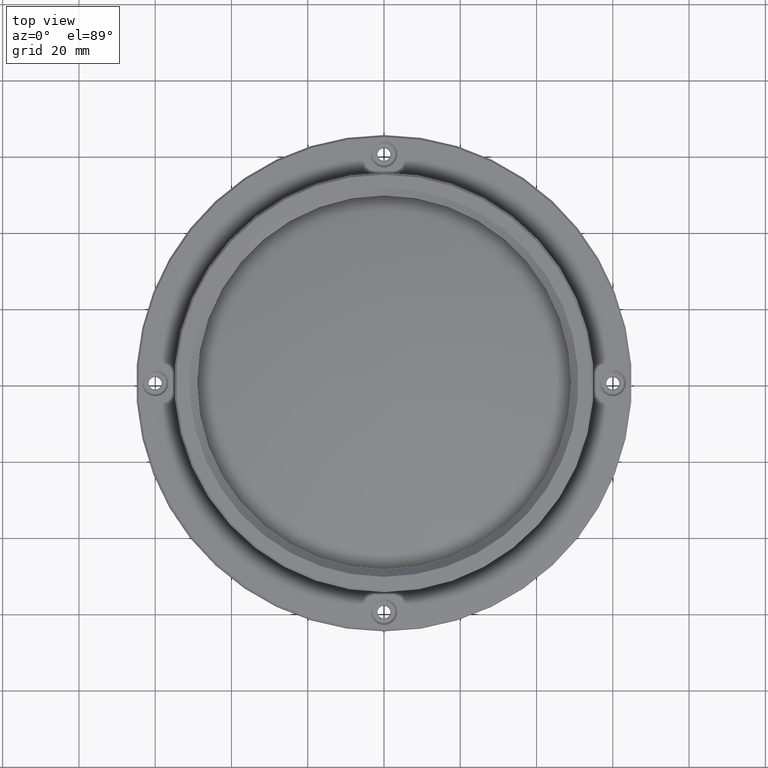
[diagram: clean part render]
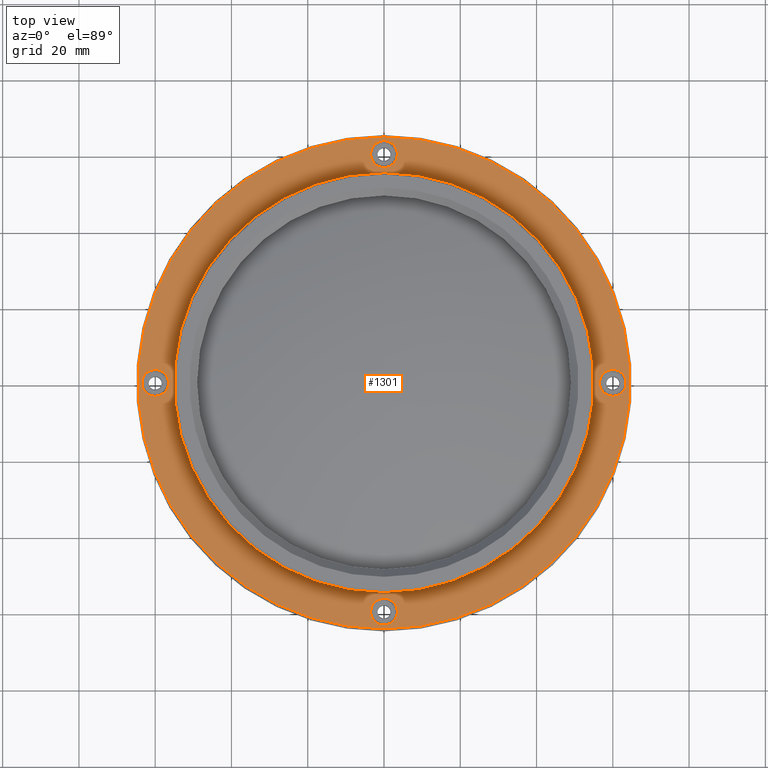
[diagram: same view with one face highlighted and labeled with its STEP entity id]
A machine part, top view. The second image highlights one B-rep face of the part: STEP entity #1301.
In plain terms, the highlighted planar face has unit normal (0, 0, -1).
Its self-contained STEP definition (entity closure, byte-faithful):
#14 = CARTESIAN_POINT ( 'NONE',  ( 3.500000000000000000, 60.00000000000000000, 64.49999937593000254 ) ) ;
#19 = CIRCLE ( 'NONE', #1603, 3.500000000000000000 ) ;
#42 = ORIENTED_EDGE ( 'NONE', *, *, #2005, .T. ) ;
#44 = DIRECTION ( 'NONE',  ( 0.000000000000000000, 0.000000000000000000, -1.000000000000000000 ) ) ;
#77 = ORIENTED_EDGE ( 'NONE', *, *, #2275, .F. ) ;
#125 = DIRECTION ( 'NONE',  ( 0.000000000000000000, 1.000000000000000000, 0.000000000000000000 ) ) ;
#154 = CARTESIAN_POINT ( 'NONE',  ( -60.00000000000000000, 3.500000000000000000, 64.49999937593000254 ) ) ;
#163 = ORIENTED_EDGE ( 'NONE', *, *, #633, .T. ) ;
#165 = EDGE_LOOP ( 'NONE', ( #284, #2220 ) ) ;
#169 = DIRECTION ( 'NONE',  ( 0.000000000000000000, 1.000000000000000000, 0.000000000000000000 ) ) ;
#187 = VERTEX_POINT ( 'NONE', #2142 ) ;
#206 = EDGE_CURVE ( 'NONE', #854, #1212, #19, .T. ) ;
#218 = AXIS2_PLACEMENT_3D ( 'NONE', #339, #2256, #1377 ) ;
#250 = AXIS2_PLACEMENT_3D ( 'NONE', #1020, #1731, #169 ) ;
#253 = CARTESIAN_POINT ( 'NONE',  ( 0.000000000000000000, 60.00000000000000000, 64.49999937593000254 ) ) ;
#284 = ORIENTED_EDGE ( 'NONE', *, *, #1676, .T. ) ;
#306 = CARTESIAN_POINT ( 'NONE',  ( 3.500000000000000000, -60.00000000000000000, 64.49999937593000254 ) ) ;
#333 = DIRECTION ( 'NONE',  ( -1.000000000000000000, 0.000000000000000000, 0.000000000000000000 ) ) ;
#339 = CARTESIAN_POINT ( 'NONE',  ( -60.00000000000000000, -1.110223024624999873E-14, 64.49999937593000254 ) ) ;
#349 = DIRECTION ( 'NONE',  ( 0.000000000000000000, 0.000000000000000000, -1.000000000000000000 ) ) ;
#356 = EDGE_CURVE ( 'NONE', #978, #187, #1621, .T. ) ;
#376 = ORIENTED_EDGE ( 'NONE', *, *, #2150, .F. ) ;
#384 = FACE_BOUND ( 'NONE', #1665, .T. ) ;
#401 = VERTEX_POINT ( 'NONE', #2123 ) ;
#417 = VERTEX_POINT ( 'NONE', #1557 ) ;
#425 = EDGE_LOOP ( 'NONE', ( #1018, #1206 ) ) ;
#439 = CIRCLE ( 'NONE', #250, 64.49999640843999771 ) ;
#442 = DIRECTION ( 'NONE',  ( 0.000000000000000000, 0.000000000000000000, -1.000000000000000000 ) ) ;
#443 = ORIENTED_EDGE ( 'NONE', *, *, #206, .T. ) ;
#450 = EDGE_CURVE ( 'NONE', #1956, #1233, #1324, .T. ) ;
#486 = CARTESIAN_POINT ( 'NONE',  ( 0.000000000000000000, 0.000000000000000000, 64.49999937593000254 ) ) ;
#495 = VERTEX_POINT ( 'NONE', #557 ) ;
#499 = CARTESIAN_POINT ( 'NONE',  ( 0.000000000000000000, -60.00000000000000000, 64.49999937593000254 ) ) ;
#508 = AXIS2_PLACEMENT_3D ( 'NONE', #486, #1375, #125 ) ;
#515 = CIRCLE ( 'NONE', #593, 3.500000000000000000 ) ;
#540 = FACE_BOUND ( 'NONE', #1913, .T. ) ;
#544 = CIRCLE ( 'NONE', #1619, 3.500000000000000000 ) ;
#551 = CIRCLE ( 'NONE', #844, 55.00000432955999941 ) ;
#553 = DIRECTION ( 'NONE',  ( 0.000000000000000000, 0.000000000000000000, 1.000000000000000000 ) ) ;
#557 = CARTESIAN_POINT ( 'NONE',  ( 0.000000000000000000, -55.00000432955999941, 64.49999937593000254 ) ) ;
#559 = VERTEX_POINT ( 'NONE', #14 ) ;
#566 = FACE_BOUND ( 'NONE', #688, .T. ) ;
#569 = AXIS2_PLACEMENT_3D ( 'NONE', #1884, #2202, #1893 ) ;
#593 = AXIS2_PLACEMENT_3D ( 'NONE', #690, #870, #333 ) ;
#600 = EDGE_CURVE ( 'NONE', #187, #978, #1398, .T. ) ;
#605 = DIRECTION ( 'NONE',  ( -1.000000000000000000, 0.000000000000000000, 0.000000000000000000 ) ) ;
#625 = AXIS2_PLACEMENT_3D ( 'NONE', #2139, #44, #1651 ) ;
#633 = EDGE_CURVE ( 'NONE', #559, #854, #1817, .T. ) ;
#671 = EDGE_CURVE ( 'NONE', #1212, #559, #1706, .T. ) ;
#688 = EDGE_LOOP ( 'NONE', ( #1814, #2269, #42 ) ) ;
#690 = CARTESIAN_POINT ( 'NONE',  ( 0.000000000000000000, -60.00000000000000000, 64.49999937593000254 ) ) ;
#753 = ORIENTED_EDGE ( 'NONE', *, *, #1856, .T. ) ;
#814 = AXIS2_PLACEMENT_3D ( 'NONE', #1838, #2034, #1474 ) ;
#844 = AXIS2_PLACEMENT_3D ( 'NONE', #1653, #553, #1997 ) ;
#854 = VERTEX_POINT ( 'NONE', #1528 ) ;
#862 = EDGE_CURVE ( 'NONE', #2137, #2124, #439, .T. ) ;
#870 = DIRECTION ( 'NONE',  ( 0.000000000000000000, 0.000000000000000000, -1.000000000000000000 ) ) ;
#896 = AXIS2_PLACEMENT_3D ( 'NONE', #906, #2012, #1440 ) ;
#897 = CARTESIAN_POINT ( 'NONE',  ( -60.00000000000000000, -1.110223024624999873E-14, 64.49999937593000254 ) ) ;
#906 = CARTESIAN_POINT ( 'NONE',  ( 0.000000000000000000, 0.000000000000000000, 64.49999937593000254 ) ) ;
#926 = CARTESIAN_POINT ( 'NONE',  ( 60.00000000000000000, -3.500000000000000000, 64.49999937593000254 ) ) ;
#952 = AXIS2_PLACEMENT_3D ( 'NONE', #1204, #1388, #1957 ) ;
#962 = EDGE_CURVE ( 'NONE', #1058, #417, #1962, .T. ) ;
#978 = VERTEX_POINT ( 'NONE', #154 ) ;
#994 = AXIS2_PLACEMENT_3D ( 'NONE', #897, #2147, #1800 ) ;
#1018 = ORIENTED_EDGE ( 'NONE', *, *, #600, .T. ) ;
#1020 = CARTESIAN_POINT ( 'NONE',  ( 0.000000000000000000, 0.000000000000000000, 64.49999640897000575 ) ) ;
#1050 = DIRECTION ( 'NONE',  ( 1.000000000000000000, 0.000000000000000000, 0.000000000000000000 ) ) ;
#1056 = CARTESIAN_POINT ( 'NONE',  ( 0.000000000000000000, -63.49999999999690914, 64.49999937593000254 ) ) ;
#1058 = VERTEX_POINT ( 'NONE', #926 ) ;
#1070 = VERTEX_POINT ( 'NONE', #2161 ) ;
#1100 = CARTESIAN_POINT ( 'NONE',  ( 0.000000000000000000, 64.49999541944998782, 64.49999739796000142 ) ) ;
#1102 = FACE_OUTER_BOUND ( 'NONE', #1336, .T. ) ;
#1204 = CARTESIAN_POINT ( 'NONE',  ( 60.00000000000000000, 0.000000000000000000, 64.49999937593000254 ) ) ;
#1206 = ORIENTED_EDGE ( 'NONE', *, *, #356, .T. ) ;
#1212 = VERTEX_POINT ( 'NONE', #2278 ) ;
#1233 = VERTEX_POINT ( 'NONE', #1056 ) ;
#1242 = CIRCLE ( 'NONE', #508, 55.00000432955999941 ) ;
#1263 = DIRECTION ( 'NONE',  ( 1.000000000000000000, 0.000000000000000000, 0.000000000000000000 ) ) ;
#1267 = PLANE ( 'NONE',  #896 ) ;
#1301 = ADVANCED_FACE ( 'NONE', ( #540, #384, #2157, #566, #1620, #1102 ), #1267, .F. ) ;
#1324 = CIRCLE ( 'NONE', #2013, 3.500000000000000000 ) ;
#1336 = EDGE_LOOP ( 'NONE', ( #77, #1751 ) ) ;
#1375 = DIRECTION ( 'NONE',  ( 0.000000000000000000, 0.000000000000000000, -1.000000000000000000 ) ) ;
#1377 = DIRECTION ( 'NONE',  ( 0.000000000000000000, 1.000000000000000000, 0.000000000000000000 ) ) ;
#1388 = DIRECTION ( 'NONE',  ( 0.000000000000000000, 0.000000000000000000, -1.000000000000000000 ) ) ;
#1398 = CIRCLE ( 'NONE', #994, 3.500000000000000000 ) ;
#1422 = DIRECTION ( 'NONE',  ( 0.000000000000000000, 0.000000000000000000, -1.000000000000000000 ) ) ;
#1434 = CARTESIAN_POINT ( 'NONE',  ( 0.000000000000000000, -60.00000000000000000, 64.49999937593000254 ) ) ;
#1440 = DIRECTION ( 'NONE',  ( 0.000000000000000000, -1.000000000000000000, 0.000000000000000000 ) ) ;
#1448 = DIRECTION ( 'NONE',  ( 0.000000000000000000, 0.000000000000000000, -1.000000000000000000 ) ) ;
#1474 = DIRECTION ( 'NONE',  ( 1.000000000000000000, 0.000000000000000000, 0.000000000000000000 ) ) ;
#1528 = CARTESIAN_POINT ( 'NONE',  ( 0.000000000000000000, 56.50000000000310507, 64.49999937593000254 ) ) ;
#1557 = CARTESIAN_POINT ( 'NONE',  ( 60.00000000000000000, 3.500000000000000000, 64.49999937593000254 ) ) ;
#1603 = AXIS2_PLACEMENT_3D ( 'NONE', #1829, #1448, #1263 ) ;
#1619 = AXIS2_PLACEMENT_3D ( 'NONE', #1434, #1422, #2180 ) ;
#1620 = FACE_BOUND ( 'NONE', #425, .T. ) ;
#1621 = CIRCLE ( 'NONE', #218, 3.500000000000000000 ) ;
#1632 = EDGE_CURVE ( 'NONE', #1233, #1070, #544, .T. ) ;
#1651 = DIRECTION ( 'NONE',  ( 0.000000000000000000, 1.000000000000000000, 0.000000000000000000 ) ) ;
#1653 = CARTESIAN_POINT ( 'NONE',  ( 0.000000000000000000, 0.000000000000000000, 64.49999937593000254 ) ) ;
#1656 = CIRCLE ( 'NONE', #625, 3.500000000000000000 ) ;
#1665 = EDGE_LOOP ( 'NONE', ( #1861, #163, #443 ) ) ;
#1676 = EDGE_CURVE ( 'NONE', #417, #1058, #1656, .T. ) ;
#1706 = CIRCLE ( 'NONE', #2006, 3.500000000000000000 ) ;
#1731 = DIRECTION ( 'NONE',  ( 0.000000000000000000, 0.000000000000000000, 1.000000000000000000 ) ) ;
#1751 = ORIENTED_EDGE ( 'NONE', *, *, #862, .T. ) ;
#1800 = DIRECTION ( 'NONE',  ( 0.000000000000000000, -1.000000000000000000, 0.000000000000000000 ) ) ;
#1814 = ORIENTED_EDGE ( 'NONE', *, *, #450, .T. ) ;
#1817 = CIRCLE ( 'NONE', #814, 3.500000000000000000 ) ;
#1829 = CARTESIAN_POINT ( 'NONE',  ( 0.000000000000000000, 60.00000000000000000, 64.49999937593000254 ) ) ;
#1838 = CARTESIAN_POINT ( 'NONE',  ( 0.000000000000000000, 60.00000000000000000, 64.49999937593000254 ) ) ;
#1856 = EDGE_CURVE ( 'NONE', #401, #495, #1242, .T. ) ;
#1861 = ORIENTED_EDGE ( 'NONE', *, *, #671, .T. ) ;
#1884 = CARTESIAN_POINT ( 'NONE',  ( 0.000000000000000000, 0.000000000000000000, 64.49999640897000575 ) ) ;
#1893 = DIRECTION ( 'NONE',  ( 0.000000000000000000, 1.000000000000000000, 0.000000000000000000 ) ) ;
#1913 = EDGE_LOOP ( 'NONE', ( #376, #753 ) ) ;
#1956 = VERTEX_POINT ( 'NONE', #306 ) ;
#1957 = DIRECTION ( 'NONE',  ( 0.000000000000000000, -1.000000000000000000, 0.000000000000000000 ) ) ;
#1962 = CIRCLE ( 'NONE', #952, 3.500000000000000000 ) ;
#1997 = DIRECTION ( 'NONE',  ( 0.000000000000000000, 1.000000000000000000, 0.000000000000000000 ) ) ;
#2005 = EDGE_CURVE ( 'NONE', #1070, #1956, #515, .T. ) ;
#2006 = AXIS2_PLACEMENT_3D ( 'NONE', #253, #442, #605 ) ;
#2012 = DIRECTION ( 'NONE',  ( 0.000000000000000000, 0.000000000000000000, -1.000000000000000000 ) ) ;
#2013 = AXIS2_PLACEMENT_3D ( 'NONE', #499, #349, #1050 ) ;
#2034 = DIRECTION ( 'NONE',  ( 0.000000000000000000, 0.000000000000000000, -1.000000000000000000 ) ) ;
#2123 = CARTESIAN_POINT ( 'NONE',  ( 0.000000000000000000, 55.00000432955999941, 64.49999937593000254 ) ) ;
#2124 = VERTEX_POINT ( 'NONE', #2156 ) ;
#2137 = VERTEX_POINT ( 'NONE', #1100 ) ;
#2139 = CARTESIAN_POINT ( 'NONE',  ( 60.00000000000000000, 0.000000000000000000, 64.49999937593000254 ) ) ;
#2142 = CARTESIAN_POINT ( 'NONE',  ( -60.00000000000000000, -3.500000000000000000, 64.49999937593000254 ) ) ;
#2147 = DIRECTION ( 'NONE',  ( 0.000000000000000000, 0.000000000000000000, -1.000000000000000000 ) ) ;
#2150 = EDGE_CURVE ( 'NONE', #401, #495, #551, .T. ) ;
#2156 = CARTESIAN_POINT ( 'NONE',  ( 0.000000000000000000, -64.49999541944998782, 64.49999739796000142 ) ) ;
#2157 = FACE_BOUND ( 'NONE', #165, .T. ) ;
#2161 = CARTESIAN_POINT ( 'NONE',  ( -3.500000000000000000, -60.00000000000000000, 64.49999937593000254 ) ) ;
#2180 = DIRECTION ( 'NONE',  ( 1.000000000000000000, 0.000000000000000000, 0.000000000000000000 ) ) ;
#2202 = DIRECTION ( 'NONE',  ( 0.000000000000000000, 0.000000000000000000, -1.000000000000000000 ) ) ;
#2220 = ORIENTED_EDGE ( 'NONE', *, *, #962, .T. ) ;
#2256 = DIRECTION ( 'NONE',  ( 0.000000000000000000, 0.000000000000000000, -1.000000000000000000 ) ) ;
#2269 = ORIENTED_EDGE ( 'NONE', *, *, #1632, .T. ) ;
#2275 = EDGE_CURVE ( 'NONE', #2137, #2124, #2277, .T. ) ;
#2277 = CIRCLE ( 'NONE', #569, 64.49999640843999771 ) ;
#2278 = CARTESIAN_POINT ( 'NONE',  ( -3.500000000000000000, 60.00000000000000000, 64.49999937593000254 ) ) ;